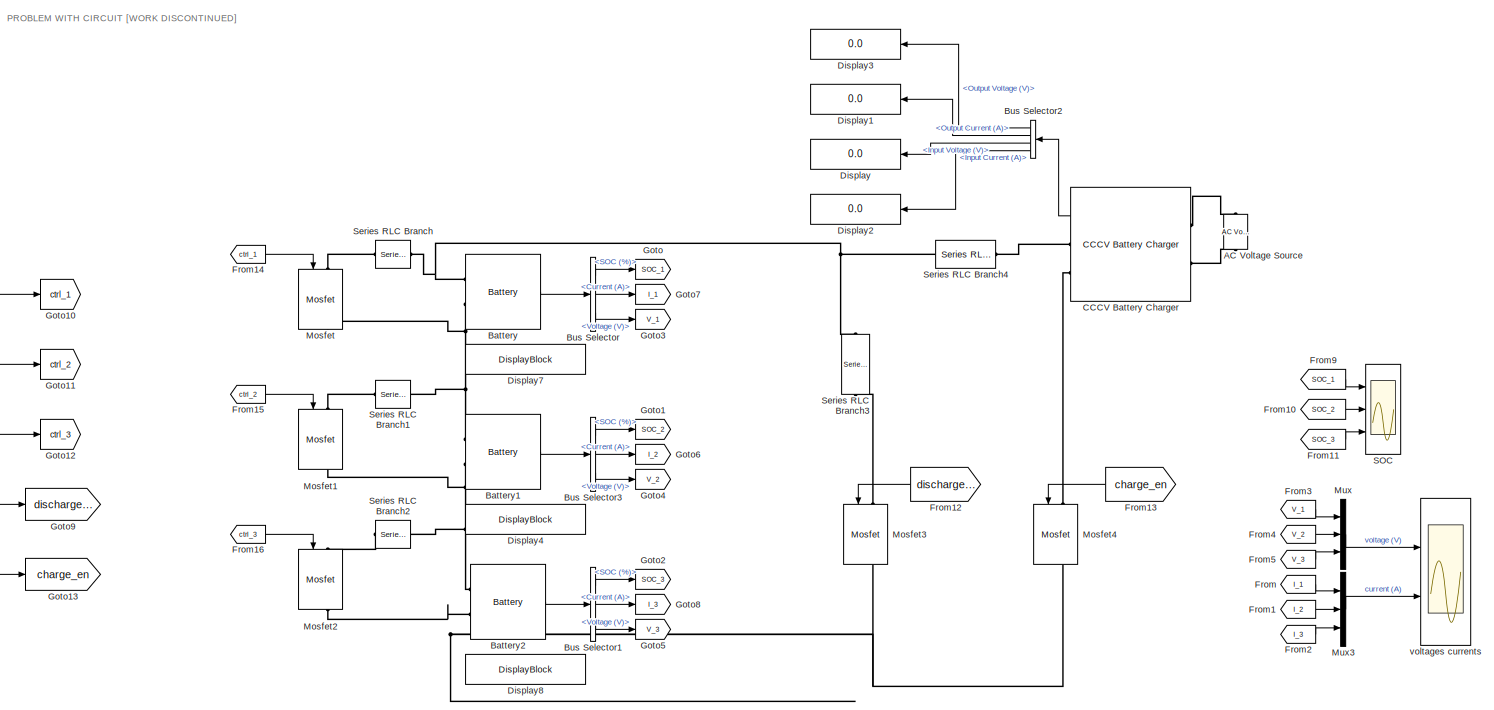
[diagram: root canvas - part 1/2, most of the canvas]
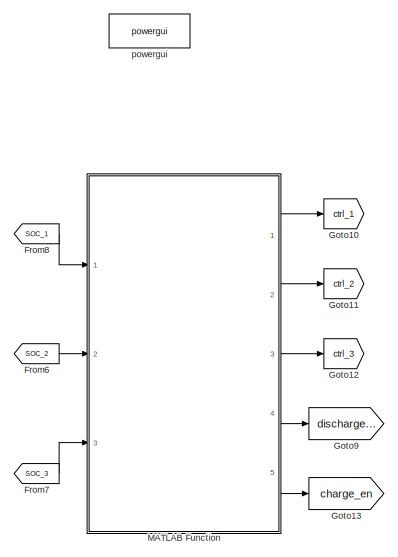
[diagram: root canvas - part 2/2, left side, full height]
MODEL slx_0c2190c74cb7
KIND model
CONFIG AbsTol = auto
CONFIG EnableMultiTasking = off
CONFIG FixedStep = auto
CONFIG MaxStep = auto
CONFIG MinStep = auto
CONFIG RelTol = 1e-3
CONFIG SampleTimeConstraint = Unconstrained
CONFIG SolverName = VariableStepAuto
CONFIG StartTime = 0.0
CONFIG StopTime = 100
BLOCK [Reference] AC Voltage Source  REF=powerlib/Electrical
Sources/AC Voltage Source
  NameLocation = right
  Ports = [0, 0, 0, 0, 0, 1, 1]
  SourceBlock = powerlib/Electrical\nSources/AC Voltage Source
  SourceProductBaseCode = PS
  SourceType = AC Voltage Source
BLOCK [Reference] Battery  REF=electricdrivelib/Extra Sources/Battery
  NameLocation = top
  Ports = [0, 1, 0, 0, 0, 2]
  SourceBlock = electricdrivelib/Extra Sources/Battery
  SourceProductBaseCode = PS
  SourceType = Battery
BLOCK [Reference] Battery1  REF=electricdrivelib/Extra Sources/Battery
  NameLocation = top
  Ports = [0, 1, 0, 0, 0, 2]
  SourceBlock = electricdrivelib/Extra Sources/Battery
  SourceProductBaseCode = PS
  SourceType = Battery
BLOCK [Reference] Battery2  REF=electricdrivelib/Extra Sources/Battery
  NameLocation = top
  Ports = [0, 1, 0, 0, 0, 2]
  SourceBlock = electricdrivelib/Extra Sources/Battery
  SourceProductBaseCode = PS
  SourceType = Battery
BLOCK [BusSelector] Bus Selector
  OutputSignals = SOC (%),Current (A),Voltage (V)
  Ports = [1, 3]
BLOCK [BusSelector] Bus Selector1
  OutputSignals = SOC (%),Current (A),Voltage (V)
  Ports = [1, 3]
BLOCK [BusSelector] Bus Selector2
  NameLocation = top
  OutputSignals = Output Voltage (V),Output Current (A),Input Voltage (V),Input Current (A)
  Ports = [1, 4]
BLOCK [BusSelector] Bus Selector3
  OutputSignals = SOC (%),Current (A),Voltage (V)
  Ports = [1, 3]
BLOCK [Reference] CCCV Battery Charger  REF=electricdrivelib/Extra Sources/CCCV Battery Charger
  Ports = [0, 1, 0, 0, 0, 2, 2]
  SourceBlock = electricdrivelib/Extra Sources/CCCV Battery Charger
  SourceProductBaseCode = PS
  SourceType = CCCV Battery Charger
BLOCK [Display] Display
  Decimation = 1
  NameLocation = top
  Ports = [1]
BLOCK [Display] Display1
  Decimation = 1
  NameLocation = top
  Ports = [1]
BLOCK [Display] Display2
  Decimation = 1
  NameLocation = top
  Ports = [1]
BLOCK [Display] Display3
  Decimation = 1
  NameLocation = top
  Ports = [1]
BLOCK [DisplayBlock] Display4
  Format = Custom
  FormatString = %0.2f
  LabelPosition = Hide
  Transparency = 1
BLOCK [DisplayBlock] Display7
  Format = Custom
  FormatString = %0.2f
  LabelPosition = Hide
  Transparency = 1
BLOCK [DisplayBlock] Display8
  Format = Custom
  FormatString = %0.2f
  LabelPosition = Hide
  Transparency = 1
BLOCK [From] From
  GotoTag = I_1
  TagVisibility = global
BLOCK [From] From1
  GotoTag = I_2
  TagVisibility = global
BLOCK [From] From10
  GotoTag = SOC_2
  TagVisibility = global
BLOCK [From] From11
  GotoTag = SOC_3
  TagVisibility = global
BLOCK [From] From12
  GotoTag = discharge_en
  NameLocation = top
  TagVisibility = global
BLOCK [From] From13
  GotoTag = charge_en
  NameLocation = top
  TagVisibility = global
BLOCK [From] From14
  GotoTag = ctrl_1
  TagVisibility = global
BLOCK [From] From15
  GotoTag = ctrl_2
  TagVisibility = global
BLOCK [From] From16
  GotoTag = ctrl_3
  TagVisibility = global
BLOCK [From] From2
  GotoTag = I_3
  TagVisibility = global
BLOCK [From] From3
  GotoTag = V_1
  TagVisibility = global
BLOCK [From] From4
  GotoTag = V_2
  TagVisibility = global
BLOCK [From] From5
  GotoTag = V_3
  TagVisibility = global
BLOCK [From] From6
  GotoTag = SOC_2
  TagVisibility = global
BLOCK [From] From7
  GotoTag = SOC_3
  TagVisibility = global
BLOCK [From] From8
  GotoTag = SOC_1
  TagVisibility = global
BLOCK [From] From9
  GotoTag = SOC_1
  TagVisibility = global
BLOCK [Goto] Goto
  GotoTag = SOC_1
  TagVisibility = global
BLOCK [Goto] Goto1
  GotoTag = SOC_2
  TagVisibility = global
BLOCK [Goto] Goto10
  GotoTag = ctrl_1
  TagVisibility = global
BLOCK [Goto] Goto11
  GotoTag = ctrl_2
  TagVisibility = global
BLOCK [Goto] Goto12
  GotoTag = ctrl_3
  TagVisibility = global
BLOCK [Goto] Goto13
  GotoTag = charge_en
  TagVisibility = global
BLOCK [Goto] Goto2
  GotoTag = SOC_3
  TagVisibility = global
BLOCK [Goto] Goto3
  GotoTag = V_1
  TagVisibility = global
BLOCK [Goto] Goto4
  GotoTag = V_2
  TagVisibility = global
BLOCK [Goto] Goto5
  GotoTag = V_3
  TagVisibility = global
BLOCK [Goto] Goto6
  GotoTag = I_2
  TagVisibility = global
BLOCK [Goto] Goto7
  GotoTag = I_1
  TagVisibility = global
BLOCK [Goto] Goto8
  GotoTag = I_3
  TagVisibility = global
BLOCK [Goto] Goto9
  GotoTag = discharge_en
  TagVisibility = global
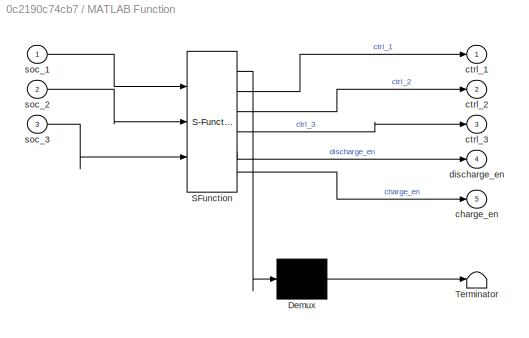
BLOCK [SubSystem] MATLAB Function
  ErrorFcn = Stateflow.Translate.translate
  PermitHierarchicalResolution = ExplicitOnly
  Ports = [3, 5]
  RequestExecContextInheritance = off
  SFBlockType = MATLAB Function
  TreatAsAtomicUnit = on
BLOCK [Demux] MATLAB Function/ Demux 
  Outputs = 1
  Ports = [1, 1]
BLOCK [S-Function] MATLAB Function/ SFunction 
  EnableBusSupport = on
  FunctionName = sf_sfun
  PortCounts = [3 6]
  Ports = [3, 6]
  SFcnIsStateOwnerBlock = off
  SFunctionDeploymentMode = off
  Tag = Stateflow S-Function 2
BLOCK [Terminator] MATLAB Function/ Terminator 
BLOCK [Outport] MATLAB Function/charge_en
  Port = 5
BLOCK [Outport] MATLAB Function/ctrl_1
BLOCK [Outport] MATLAB Function/ctrl_2
  Port = 2
BLOCK [Outport] MATLAB Function/ctrl_3
  Port = 3
BLOCK [Outport] MATLAB Function/discharge_en
  Port = 4
BLOCK [Inport] MATLAB Function/soc_1
BLOCK [Inport] MATLAB Function/soc_2
  Port = 2
BLOCK [Inport] MATLAB Function/soc_3
  Port = 3
BLOCK [Reference] Mosfet  REF=powerlib/Power
Electronics/Mosfet
  NameLocation = right
  Ports = [1, 1, 0, 0, 0, 1, 1]
  SourceBlock = powerlib/Power\nElectronics/Mosfet
  SourceProductBaseCode = PS
  SourceType = Mosfet
BLOCK [Reference] Mosfet1  REF=powerlib/Power
Electronics/Mosfet
  NameLocation = right
  Ports = [1, 1, 0, 0, 0, 1, 1]
  SourceBlock = powerlib/Power\nElectronics/Mosfet
  SourceProductBaseCode = PS
  SourceType = Mosfet
BLOCK [Reference] Mosfet2  REF=powerlib/Power
Electronics/Mosfet
  NameLocation = right
  Ports = [1, 1, 0, 0, 0, 1, 1]
  SourceBlock = powerlib/Power\nElectronics/Mosfet
  SourceProductBaseCode = PS
  SourceType = Mosfet
BLOCK [Reference] Mosfet3  REF=powerlib/Power
Electronics/Mosfet
  NameLocation = right
  Ports = [1, 1, 0, 0, 0, 1, 1]
  SourceBlock = powerlib/Power\nElectronics/Mosfet
  SourceProductBaseCode = PS
  SourceType = Mosfet
BLOCK [Reference] Mosfet4  REF=powerlib/Power
Electronics/Mosfet
  NameLocation = right
  Ports = [1, 1, 0, 0, 0, 1, 1]
  SourceBlock = powerlib/Power\nElectronics/Mosfet
  SourceProductBaseCode = PS
  SourceType = Mosfet
BLOCK [Mux] Mux
  DisplayOption = bar
  Inputs = 3
  Ports = [3, 1]
BLOCK [Mux] Mux3
  DisplayOption = bar
  Inputs = 3
  NameLocation = top
  Ports = [3, 1]
BLOCK [Scope] SOC
  Floating = off
  NumInputPorts = 3
  Ports = [3]
  ScopeSpecificationString = Simulink.scopes.TimeScopeBlockCfg('CurrentConfiguration', extmgr.ConfigurationSet(extmgr.Configuration('Core','General UI',true,'DisplayFullSourceName',true),extmgr.Configuration('Core','Source UI',true),extmgr.Configuration('Sources','WiredSimulink',true,'DataLoggingVariableName','ScopeData1'),extmgr.Configuration('Visuals','Time Domain',true,'SerializedDisplays',{struct('MinYLimReal','-7.06292',...<+1988ch>
BLOCK [Reference] Series RLC Branch  REF=powerlib/Elements/Series RLC Branch
  Ports = [0, 0, 0, 0, 0, 1, 1]
  SourceBlock = powerlib/Elements/Series RLC Branch
  SourceProductBaseCode = PS
  SourceType = Series RLC Branch
BLOCK [Reference] Series RLC Branch1  REF=powerlib/Elements/Series RLC Branch
  Ports = [0, 0, 0, 0, 0, 1, 1]
  SourceBlock = powerlib/Elements/Series RLC Branch
  SourceProductBaseCode = PS
  SourceType = Series RLC Branch
BLOCK [Reference] Series RLC Branch2  REF=powerlib/Elements/Series RLC Branch
  Ports = [0, 0, 0, 0, 0, 1, 1]
  SourceBlock = powerlib/Elements/Series RLC Branch
  SourceProductBaseCode = PS
  SourceType = Series RLC Branch
BLOCK [Reference] Series RLC Branch3  REF=powerlib/Elements/Series RLC Branch
  NameLocation = left
  Ports = [0, 0, 0, 0, 0, 1, 1]
  SourceBlock = powerlib/Elements/Series RLC Branch
  SourceProductBaseCode = PS
  SourceType = Series RLC Branch
BLOCK [Reference] Series RLC Branch4  REF=powerlib/Elements/Series RLC Branch
  NameLocation = top
  Ports = [0, 0, 0, 0, 0, 1, 1]
  SourceBlock = powerlib/Elements/Series RLC Branch
  SourceProductBaseCode = PS
  SourceType = Series RLC Branch
BLOCK [Reference] powergui  REF=powerlib/powergui
  Ports = []
  Priority = 1
  SourceBlock = powerlib/powergui
  SourceProductBaseCode = PS
  SourceType = PSB option menu block
BLOCK [Scope] voltages currents
  Floating = off
  NumInputPorts = 2
  Ports = [2]
  ScopeSpecificationString = Simulink.scopes.TimeScopeBlockCfg('CurrentConfiguration', extmgr.ConfigurationSet(extmgr.Configuration('Core','General UI',true),extmgr.Configuration('Core','Source UI',true),extmgr.Configuration('Sources','WiredSimulink',true),extmgr.Configuration('Visuals','Time Domain',true,'SerializedDisplays',{struct('MinYLimReal','-0.82471','MaxYLimReal','7.42236','YLabelReal','','MinYLimMag','0.00000','MaxY...<+2206ch>
ANNOTATION (root): PROBLEM WITH CIRCUIT [WORK DISCONTINUED]
LINE Battery1:1 -> Bus Selector3:1
LINE Battery2:1 -> Bus Selector1:1
LINE Battery:1 -> Bus Selector:1
LINE Bus Selector1:1 -> Goto2:1
LINE Bus Selector1:2 -> Goto8:1
LINE Bus Selector1:3 -> Goto5:1
LINE Bus Selector2:1 -> Display3:1
LINE Bus Selector2:2 -> Display1:1
LINE Bus Selector2:3 -> Display:1
LINE Bus Selector2:4 -> Display2:1
LINE Bus Selector3:1 -> Goto1:1
LINE Bus Selector3:2 -> Goto6:1
LINE Bus Selector3:3 -> Goto4:1
LINE Bus Selector:1 -> Goto:1
LINE Bus Selector:2 -> Goto7:1
LINE Bus Selector:3 -> Goto3:1
LINE CCCV Battery Charger:1 -> Bus Selector2:1
LINE From10:1 -> SOC:2
LINE From11:1 -> SOC:3
LINE From12:1 -> Mosfet3:1
LINE From13:1 -> Mosfet4:1
LINE From14:1 -> Mosfet:1
LINE From15:1 -> Mosfet1:1
LINE From16:1 -> Mosfet2:1
LINE From1:1 -> Mux3:2
LINE From2:1 -> Mux3:3
LINE From3:1 -> Mux:1
LINE From4:1 -> Mux:2
LINE From5:1 -> Mux:3
LINE From6:1 -> MATLAB Function:2
LINE From7:1 -> MATLAB Function:3
LINE From8:1 -> MATLAB Function:1
LINE From9:1 -> SOC:1
LINE From:1 -> Mux3:1
LINE MATLAB Function:1 -> Goto10:1
LINE MATLAB Function:2 -> Goto11:1
LINE MATLAB Function:3 -> Goto12:1
LINE MATLAB Function:4 -> Goto9:1
LINE MATLAB Function:5 -> Goto13:1
LINE Mux3:1 -> voltages currents:2
LINE Mux:1 -> voltages currents:1
PLINE AC Voltage Source:LConn1 -- CCCV Battery Charger:LConn2
PLINE AC Voltage Source:RConn1 -- CCCV Battery Charger:LConn1
PNET net1: Battery1:LConn1 -- Battery:LConn2 -- Mosfet:RConn1 -- Series RLC Branch1:RConn1
PNET net2: Battery1:LConn2 -- Battery2:LConn1 -- Mosfet1:RConn1 -- Series RLC Branch2:RConn1
PNET net3: Battery2:LConn2 -- Mosfet2:RConn1 -- Mosfet3:RConn1 -- Mosfet4:RConn1
PNET net4: Battery:LConn1 -- Series RLC Branch3:LConn1 -- Series RLC Branch4:RConn1 -- Series RLC Branch:RConn1
PLINE CCCV Battery Charger:RConn1 -- Series RLC Branch4:LConn1
PLINE CCCV Battery Charger:RConn2 -- Mosfet4:LConn1
PLINE Mosfet1:LConn1 -- Series RLC Branch1:LConn1
PLINE Mosfet2:LConn1 -- Series RLC Branch2:LConn1
PLINE Mosfet3:LConn1 -- Series RLC Branch3:RConn1
PLINE Mosfet:LConn1 -- Series RLC Branch:LConn1
note: PNET lines group multi-terminal physical nets as a canonical sorted terminal list (undirected conserving connections); 2-terminal nets keep the pairwise PLINE form
CHART MATLAB Function states=1 transitions=1
  STATE_LABEL 'eML_blk_kernel()'
  STATE_LABEL 'SCRIPT:\nfunction [ctrl_1,ctrl_2,ctrl_3,discharge_en,charge_en] = bal_algorithm(soc_1,soc_2,soc_3)\ndischarge_en = 2;\ncharge_en = 0;\nend'
CHART  states=0 transitions=0
